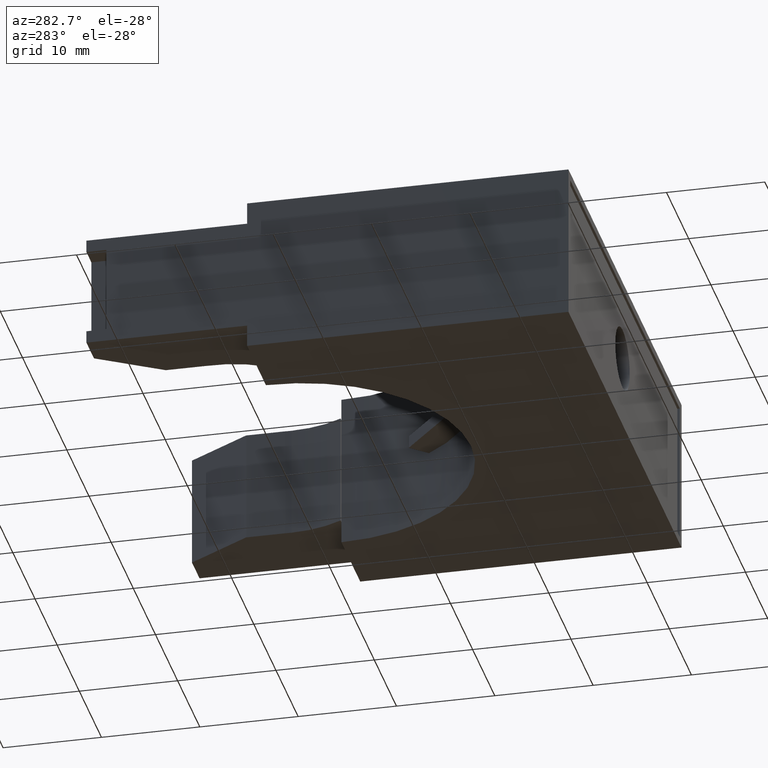
[diagram: clean part render]
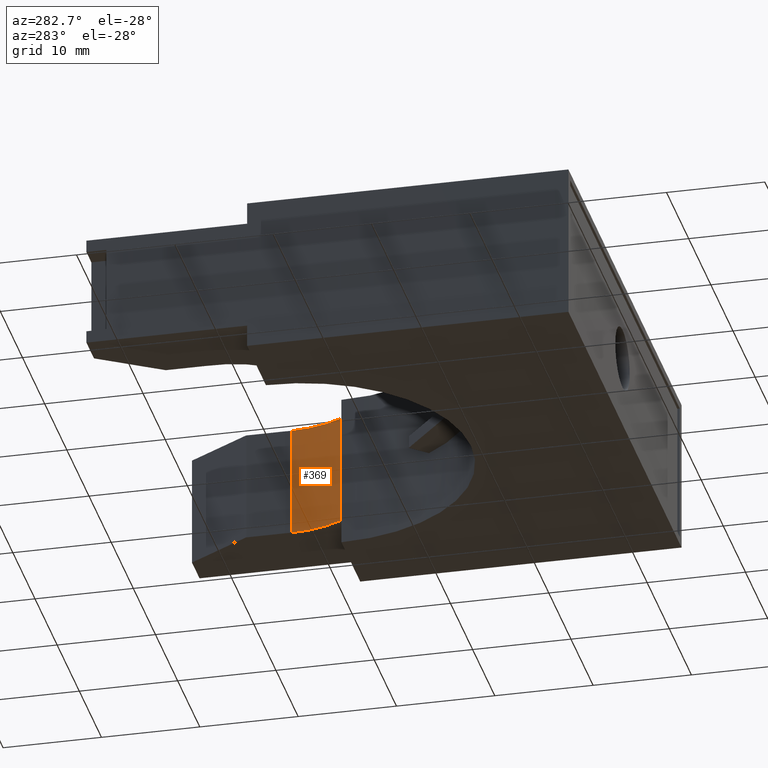
[diagram: same view with one face highlighted and labeled with its STEP entity id]
A machine part, auxiliary view. The second image highlights one B-rep face of the part: STEP entity #369.
In plain terms, the highlighted cylindrical surface (partial cylindrical patch) has radius 10.48 mm, axis along (-0, -0, 1).
Its self-contained STEP definition (entity closure, byte-faithful):
#50 = VERTEX_POINT ( 'NONE', #747 ) ;
#52 = EDGE_CURVE ( 'NONE', #50, #165, #736, .T. ) ;
#165 = VERTEX_POINT ( 'NONE', #860 ) ;
#200 = EDGE_LOOP ( 'NONE', ( #201, #202, #339, #343 ) ) ;
#201 = ORIENTED_EDGE ( 'NONE', *, *, #52, .F. ) ;
#202 = ORIENTED_EDGE ( 'NONE', *, *, #203, .T. ) ;
#203 = EDGE_CURVE ( 'NONE', #50, #359, #1125, .T. ) ;
#211 = VERTEX_POINT ( 'NONE', #999 ) ;
#218 = EDGE_CURVE ( 'NONE', #359, #211, #988, .T. ) ;
#232 = EDGE_CURVE ( 'NONE', #211, #165, #974, .T. ) ;
#339 = ORIENTED_EDGE ( 'NONE', *, *, #218, .T. ) ;
#343 = ORIENTED_EDGE ( 'NONE', *, *, #232, .T. ) ;
#359 = VERTEX_POINT ( 'NONE', #1322 ) ;
#369 = ADVANCED_FACE ( 'NONE', ( #1298 ), #1297, .F. ) ;
#734 = DIRECTION ( 'NONE',  ( -0.0000000000000000000, -0.0000000000000000000, 1.000000000000000000 ) ) ;
#735 = CARTESIAN_POINT ( 'NONE',  ( 0.7138269698126560300, 0.5313062846196321400, 0.0000000000000000000 ) ) ;
#736 = LINE ( 'NONE', #735, #772 ) ;
#747 = CARTESIAN_POINT ( 'NONE',  ( 0.7138269698126560300, 0.5313062846196321400, 0.08954999999999975500 ) ) ;
#772 = VECTOR ( 'NONE', #734, 39.37007874015748100 ) ;
#860 = CARTESIAN_POINT ( 'NONE',  ( 0.7138269698126560300, 0.5313062846196321400, 0.5404500000000003200 ) ) ;
#974 = CIRCLE ( 'NONE', #1026, 0.4126000000000000800 ) ;
#985 = DIRECTION ( 'NONE',  ( -0.0000000000000000000, -0.0000000000000000000, 1.000000000000000000 ) ) ;
#986 = VECTOR ( 'NONE', #985, 39.37007874015748100 ) ;
#987 = CARTESIAN_POINT ( 'NONE',  ( 0.6566000000000000700, 0.3216666666666669900, 0.0000000000000000000 ) ) ;
#988 = LINE ( 'NONE', #987, #986 ) ;
#999 = CARTESIAN_POINT ( 'NONE',  ( 0.6566000000000000700, 0.3216666666666669900, 0.5404500000000002100 ) ) ;
#1023 = DIRECTION ( 'NONE',  ( 3.558817975265489600E-015, 1.000000000000000000, 1.655264174542088500E-016 ) ) ;
#1024 = DIRECTION ( 'NONE',  ( -0.0000000000000000000, -2.123197922536992600E-016, 1.000000000000000000 ) ) ;
#1025 = CARTESIAN_POINT ( 'NONE',  ( 0.3012269698126561200, 0.5313062846196321400, 0.5404500000000003200 ) ) ;
#1026 = AXIS2_PLACEMENT_3D ( 'NONE', #1025, #1024, #1023 ) ;
#1121 = DIRECTION ( 'NONE',  ( 1.738027383269193300E-015, -1.000000000000000000, -1.241448130906566700E-016 ) ) ;
#1122 = DIRECTION ( 'NONE',  ( -0.0000000000000000000, 1.061598961268496400E-016, -1.000000000000000000 ) ) ;
#1123 = CARTESIAN_POINT ( 'NONE',  ( 0.3012269698126561200, 0.5313062846196321400, 0.08954999999999975500 ) ) ;
#1124 = AXIS2_PLACEMENT_3D ( 'NONE', #1123, #1122, #1121 ) ;
#1125 = CIRCLE ( 'NONE', #1124, 0.4125999999999999700 ) ;
#1293 = DIRECTION ( 'NONE',  ( 1.000000000000000000, 0.0000000000000000000, 0.0000000000000000000 ) ) ;
#1294 = DIRECTION ( 'NONE',  ( -0.0000000000000000000, -0.0000000000000000000, 1.000000000000000000 ) ) ;
#1295 = CARTESIAN_POINT ( 'NONE',  ( 0.3012269698126561200, 0.5313062846196321400, 0.0000000000000000000 ) ) ;
#1296 = AXIS2_PLACEMENT_3D ( 'NONE', #1295, #1294, #1293 ) ;
#1297 = CYLINDRICAL_SURFACE ( 'NONE', #1296, 0.4125999999999999100 ) ;
#1298 = FACE_OUTER_BOUND ( 'NONE', #200, .T. ) ;
#1322 = CARTESIAN_POINT ( 'NONE',  ( 0.6565999999999995200, 0.3216666666666668800, 0.08954999999999972700 ) ) ;